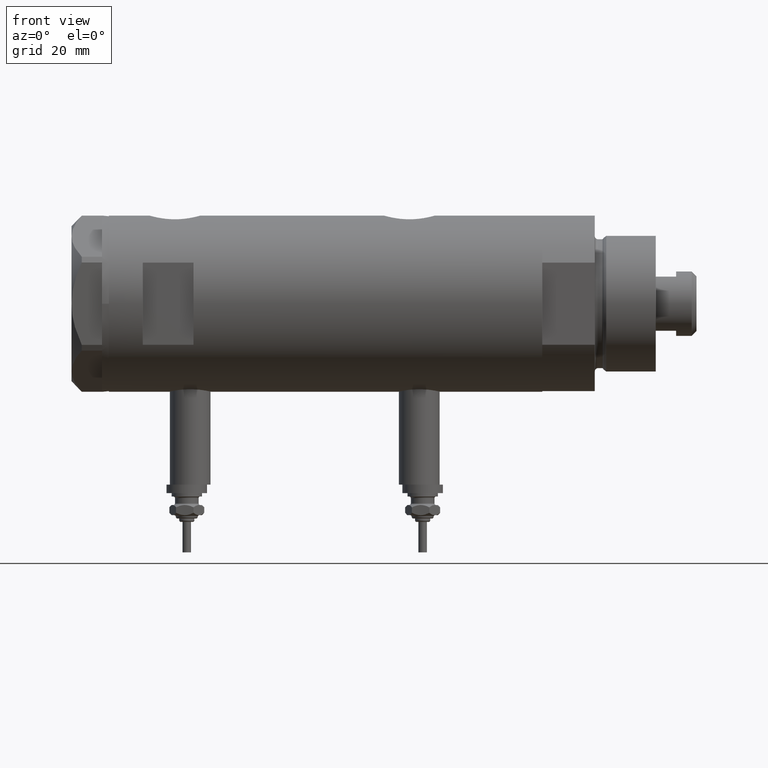
[diagram: clean part render]
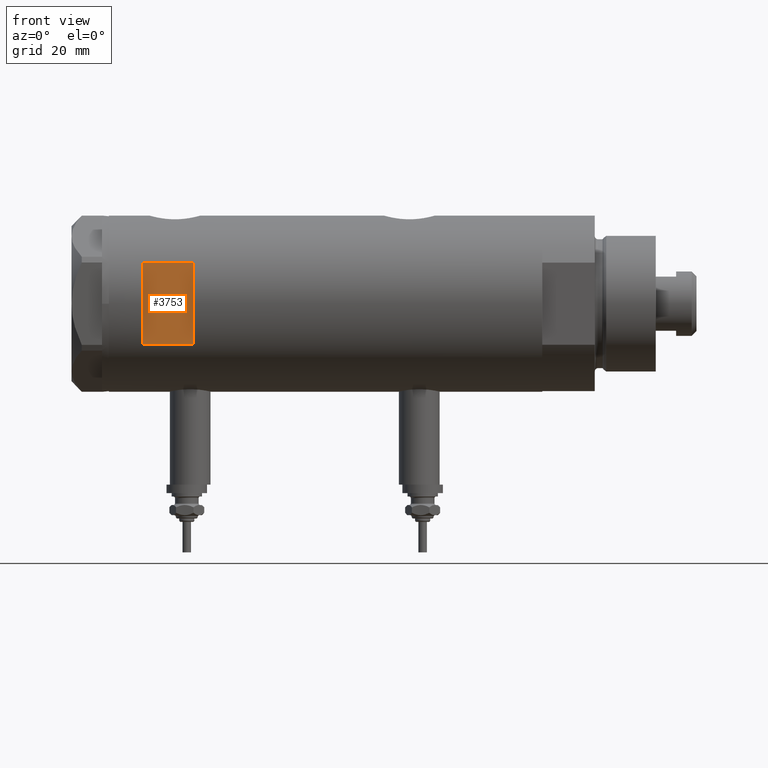
[diagram: same view with one face highlighted and labeled with its STEP entity id]
A machine part, front view. The second image highlights one B-rep face of the part: STEP entity #3753.
In plain terms, the highlighted planar face has unit normal (-0, 1, 0).
Its self-contained STEP definition (entity closure, byte-faithful):
#73 = FACE_OUTER_BOUND ( 'NONE', #3536, .T. ) ;
#175 = VECTOR ( 'NONE', #1426, 1000.000000000000000 ) ;
#379 = CARTESIAN_POINT ( 'NONE',  ( 12.12435565298214080, -23.00000000000000355, -63.95000000000000995 ) ) ;
#490 = EDGE_CURVE ( 'NONE', #3905, #4541, #1477, .T. ) ;
#548 = LINE ( 'NONE', #6327, #4863 ) ;
#615 = DIRECTION ( 'NONE',  ( 1.000000000000000000, -0.000000000000000000, -0.000000000000000000 ) ) ;
#994 = CARTESIAN_POINT ( 'NONE',  ( -26.00000000000000355, -23.00000000000000355, 38.94999999999999574 ) ) ;
#1184 = EDGE_CURVE ( 'NONE', #3012, #5823, #548, .T. ) ;
#1290 = ORIENTED_EDGE ( 'NONE', *, *, #490, .T. ) ;
#1334 = LINE ( 'NONE', #379, #175 ) ;
#1426 = DIRECTION ( 'NONE',  ( 0.000000000000000000, 0.000000000000000000, 1.000000000000000000 ) ) ;
#1477 = LINE ( 'NONE', #994, #2116 ) ;
#1949 = DIRECTION ( 'NONE',  ( 0.000000000000000000, 1.000000000000000000, 0.000000000000000000 ) ) ;
#2035 = CARTESIAN_POINT ( 'NONE',  ( 12.12435565298214080, -23.00000000000000355, 38.94999999999999574 ) ) ;
#2050 = CARTESIAN_POINT ( 'NONE',  ( -26.00000000000000355, -23.00000000000000355, 53.94999999999999574 ) ) ;
#2116 = VECTOR ( 'NONE', #615, 1000.000000000000000 ) ;
#2304 = ORIENTED_EDGE ( 'NONE', *, *, #2927, .T. ) ;
#2497 = DIRECTION ( 'NONE',  ( 1.000000000000000000, -0.000000000000000000, -0.000000000000000000 ) ) ;
#2927 = EDGE_CURVE ( 'NONE', #4541, #5823, #1334, .T. ) ;
#3012 = VERTEX_POINT ( 'NONE', #4924 ) ;
#3120 = EDGE_CURVE ( 'NONE', #3012, #3905, #6161, .T. ) ;
#3277 = AXIS2_PLACEMENT_3D ( 'NONE', #2050, #1949, #3878 ) ;
#3536 = EDGE_LOOP ( 'NONE', ( #3855, #1290, #2304, #3720 ) ) ;
#3612 = CARTESIAN_POINT ( 'NONE',  ( 12.12435565298214080, -23.00000000000000355, 53.94999999999999574 ) ) ;
#3720 = ORIENTED_EDGE ( 'NONE', *, *, #1184, .F. ) ;
#3753 = ADVANCED_FACE ( 'NONE', ( #73 ), #5404, .F. ) ;
#3855 = ORIENTED_EDGE ( 'NONE', *, *, #3120, .T. ) ;
#3878 = DIRECTION ( 'NONE',  ( 0.000000000000000000, -0.000000000000000000, 1.000000000000000000 ) ) ;
#3905 = VERTEX_POINT ( 'NONE', #4529 ) ;
#4130 = CARTESIAN_POINT ( 'NONE',  ( -12.12435565298214080, -23.00000000000000355, -63.95000000000000995 ) ) ;
#4529 = CARTESIAN_POINT ( 'NONE',  ( -12.12435565298214080, -23.00000000000000355, 38.94999999999999574 ) ) ;
#4541 = VERTEX_POINT ( 'NONE', #2035 ) ;
#4863 = VECTOR ( 'NONE', #2497, 1000.000000000000000 ) ;
#4924 = CARTESIAN_POINT ( 'NONE',  ( -12.12435565298214080, -23.00000000000000355, 53.94999999999999574 ) ) ;
#5404 = PLANE ( 'NONE',  #3277 ) ;
#5823 = VERTEX_POINT ( 'NONE', #3612 ) ;
#6070 = DIRECTION ( 'NONE',  ( -0.000000000000000000, -0.000000000000000000, -1.000000000000000000 ) ) ;
#6161 = LINE ( 'NONE', #4130, #6234 ) ;
#6234 = VECTOR ( 'NONE', #6070, 1000.000000000000000 ) ;
#6327 = CARTESIAN_POINT ( 'NONE',  ( -26.00000000000000355, -23.00000000000000355, 53.94999999999999574 ) ) ;